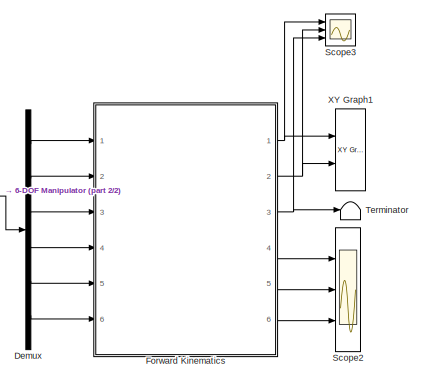
[diagram: root canvas - part 1/2, right side, full height]
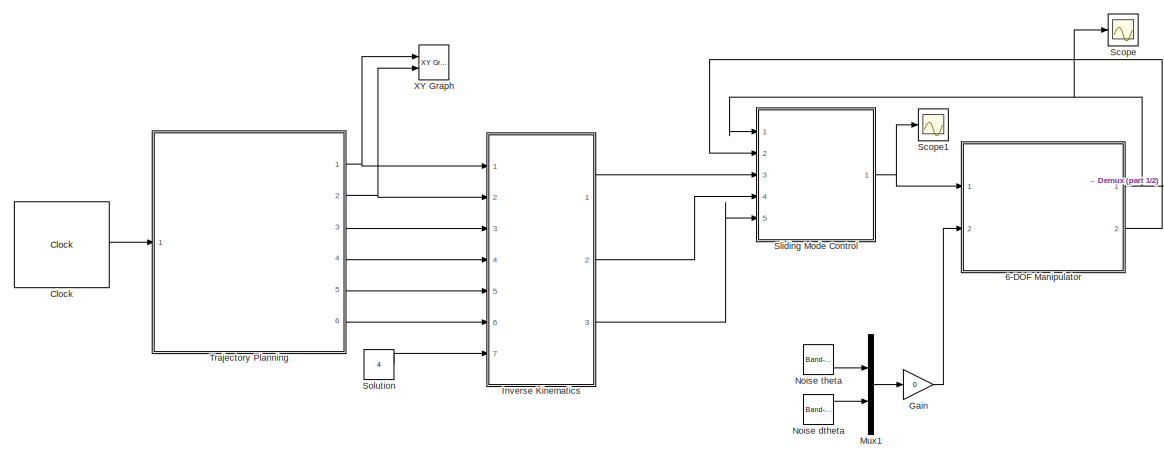
[diagram: root canvas - part 2/2, center side, full height]
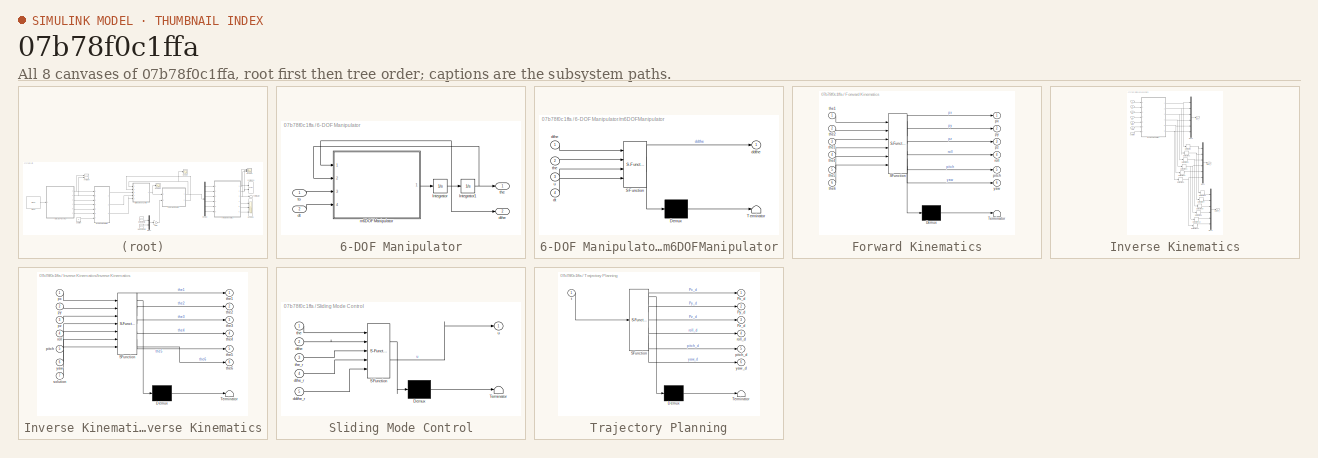
[diagram: thumbnail index - all 8 canvases of the model, root first then tree order]
MODEL slx_07b78f0c1ffa
KIND model
CONFIG AbsTol = auto
CONFIG EnableMultiTasking = off
CONFIG FixedStep = 0.01
CONFIG MaxStep = auto
CONFIG MinStep = auto
CONFIG RelTol = 1e-3
CONFIG SampleTimeConstraint = Unconstrained
CONFIG SolverName = ode14x
CONFIG StartTime = 0.0
CONFIG StopTime = 100
BLOCK [SubSystem] 6-DOF Manipulator
  Ports = [2, 2]
  RequestExecContextInheritance = off
BLOCK [Integrator] 6-DOF Manipulator/Integrator
  InitialCondition = [0.01;0.01;0.01;0.01;0.01;0.01]
  Ports = [1, 1]
BLOCK [Integrator] 6-DOF Manipulator/Integrator1
  InitialCondition = [0.01;0.01;0.01;0.01;0.01;0.01]
  Ports = [1, 1]
BLOCK [Inport] 6-DOF Manipulator/dt
  Port = 2
BLOCK [Outport] 6-DOF Manipulator/dthe
  Port = 2
BLOCK [SubSystem] 6-DOF Manipulator/m6DOFManipulator
  ErrorFcn = Stateflow.Translate.translate
  PermitHierarchicalResolution = ExplicitOnly
  Ports = [4, 1]
  RequestExecContextInheritance = off
  SFBlockType = MATLAB Function
  TreatAsAtomicUnit = on
BLOCK [Demux] 6-DOF Manipulator/m6DOFManipulator/ Demux 
  Outputs = 1
  Ports = [1, 1]
BLOCK [S-Function] 6-DOF Manipulator/m6DOFManipulator/ SFunction 
  EnableBusSupport = on
  FunctionName = sf_sfun
  PortCounts = [4 2]
  Ports = [4, 2]
  SFcnIsStateOwnerBlock = off
  SFunctionDeploymentMode = off
  Tag = Stateflow S-Function 2
BLOCK [Terminator] 6-DOF Manipulator/m6DOFManipulator/ Terminator 
BLOCK [Outport] 6-DOF Manipulator/m6DOFManipulator/ddthe
BLOCK [Inport] 6-DOF Manipulator/m6DOFManipulator/dt
  Port = 4
BLOCK [Inport] 6-DOF Manipulator/m6DOFManipulator/dthe
BLOCK [Inport] 6-DOF Manipulator/m6DOFManipulator/the
  Port = 2
BLOCK [Inport] 6-DOF Manipulator/m6DOFManipulator/u
  Port = 3
BLOCK [Outport] 6-DOF Manipulator/the
BLOCK [Inport] 6-DOF Manipulator/to
BLOCK [Clock] Clock
  DisplayTime = on
BLOCK [Demux] Demux
  Outputs = 6
  Ports = [1, 6]
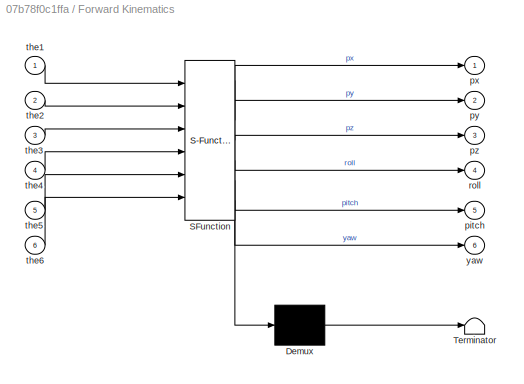
BLOCK [SubSystem] Forward Kinematics
  ErrorFcn = Stateflow.Translate.translate
  PermitHierarchicalResolution = ExplicitOnly
  Ports = [6, 6]
  RequestExecContextInheritance = off
  SFBlockType = MATLAB Function
  TreatAsAtomicUnit = on
BLOCK [Demux] Forward Kinematics/ Demux 
  Outputs = 1
  Ports = [1, 1]
BLOCK [S-Function] Forward Kinematics/ SFunction 
  EnableBusSupport = on
  FunctionName = sf_sfun
  PortCounts = [6 7]
  Ports = [6, 7]
  SFcnIsStateOwnerBlock = off
  SFunctionDeploymentMode = off
  Tag = Stateflow S-Function 5
BLOCK [Terminator] Forward Kinematics/ Terminator 
BLOCK [Outport] Forward Kinematics/pitch
  Port = 5
BLOCK [Outport] Forward Kinematics/px
BLOCK [Outport] Forward Kinematics/py
  Port = 2
BLOCK [Outport] Forward Kinematics/pz
  Port = 3
BLOCK [Outport] Forward Kinematics/roll
  Port = 4
BLOCK [Inport] Forward Kinematics/the1
BLOCK [Inport] Forward Kinematics/the2
  Port = 2
BLOCK [Inport] Forward Kinematics/the3
  Port = 3
BLOCK [Inport] Forward Kinematics/the4
  Port = 4
BLOCK [Inport] Forward Kinematics/the5
  Port = 5
BLOCK [Inport] Forward Kinematics/the6
  Port = 6
BLOCK [Outport] Forward Kinematics/yaw
  Port = 6
BLOCK [Gain] Gain
  Gain = 0
BLOCK [SubSystem] Inverse Kinematics
  Ports = [7, 3]
  RequestExecContextInheritance = off
BLOCK [Derivative] Inverse Kinematics/Derivative
BLOCK [Derivative] Inverse Kinematics/Derivative1
BLOCK [Derivative] Inverse Kinematics/Derivative10
BLOCK [Derivative] Inverse Kinematics/Derivative11
BLOCK [Derivative] Inverse Kinematics/Derivative2
BLOCK [Derivative] Inverse Kinematics/Derivative3
BLOCK [Derivative] Inverse Kinematics/Derivative4
BLOCK [Derivative] Inverse Kinematics/Derivative5
BLOCK [Derivative] Inverse Kinematics/Derivative6
BLOCK [Derivative] Inverse Kinematics/Derivative7
BLOCK [Derivative] Inverse Kinematics/Derivative8
BLOCK [Derivative] Inverse Kinematics/Derivative9
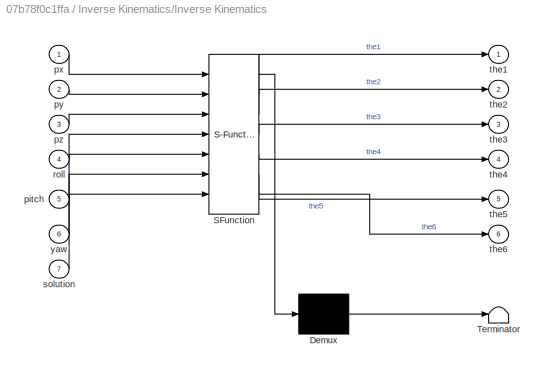
BLOCK [SubSystem] Inverse Kinematics/Inverse Kinematics
  ErrorFcn = Stateflow.Translate.translate
  PermitHierarchicalResolution = ExplicitOnly
  Ports = [7, 6]
  RequestExecContextInheritance = off
  SFBlockType = MATLAB Function
  TreatAsAtomicUnit = on
BLOCK [Demux] Inverse Kinematics/Inverse Kinematics/ Demux 
  Outputs = 1
  Ports = [1, 1]
BLOCK [S-Function] Inverse Kinematics/Inverse Kinematics/ SFunction 
  EnableBusSupport = on
  FunctionName = sf_sfun
  PortCounts = [7 7]
  Ports = [7, 7]
  SFcnIsStateOwnerBlock = off
  SFunctionDeploymentMode = off
  Tag = Stateflow S-Function 3
BLOCK [Terminator] Inverse Kinematics/Inverse Kinematics/ Terminator 
BLOCK [Inport] Inverse Kinematics/Inverse Kinematics/pitch
  Port = 5
BLOCK [Inport] Inverse Kinematics/Inverse Kinematics/px
BLOCK [Inport] Inverse Kinematics/Inverse Kinematics/py
  Port = 2
BLOCK [Inport] Inverse Kinematics/Inverse Kinematics/pz
  Port = 3
BLOCK [Inport] Inverse Kinematics/Inverse Kinematics/roll
  Port = 4
BLOCK [Inport] Inverse Kinematics/Inverse Kinematics/solution
  Port = 7
BLOCK [Outport] Inverse Kinematics/Inverse Kinematics/the1
BLOCK [Outport] Inverse Kinematics/Inverse Kinematics/the2
  Port = 2
BLOCK [Outport] Inverse Kinematics/Inverse Kinematics/the3
  Port = 3
BLOCK [Outport] Inverse Kinematics/Inverse Kinematics/the4
  Port = 4
BLOCK [Outport] Inverse Kinematics/Inverse Kinematics/the5
  Port = 5
BLOCK [Outport] Inverse Kinematics/Inverse Kinematics/the6
  Port = 6
BLOCK [Inport] Inverse Kinematics/Inverse Kinematics/yaw
  Port = 6
BLOCK [Mux] Inverse Kinematics/Mux1
  DisplayOption = bar
  Inputs = 6
  Ports = [6, 1]
BLOCK [Mux] Inverse Kinematics/Mux2
  DisplayOption = bar
  Inputs = 6
  Ports = [6, 1]
BLOCK [Mux] Inverse Kinematics/Mux3
  DisplayOption = bar
  Inputs = 6
  Ports = [6, 1]
BLOCK [Outport] Inverse Kinematics/ddthe_r
  Port = 3
  VectorParamsAs1DForOutWhenUnconnected = off
BLOCK [Outport] Inverse Kinematics/dthe_r
  Port = 2
  VectorParamsAs1DForOutWhenUnconnected = off
BLOCK [Inport] Inverse Kinematics/pitch
  Port = 5
BLOCK [Inport] Inverse Kinematics/px
BLOCK [Inport] Inverse Kinematics/py
  Port = 2
BLOCK [Inport] Inverse Kinematics/pz
  Port = 3
BLOCK [Inport] Inverse Kinematics/roll
  Port = 4
BLOCK [Inport] Inverse Kinematics/solution
  Port = 7
BLOCK [Outport] Inverse Kinematics/the_r
  VectorParamsAs1DForOutWhenUnconnected = off
BLOCK [Inport] Inverse Kinematics/yaw
  Port = 6
BLOCK [Mux] Mux1
  DisplayOption = bar
  Inputs = 2
  Ports = [2, 1]
BLOCK [Reference] Noise dtheta  REF=simulink/Sources/Band-Limited
White Noise
  Ports = [0, 1]
  SourceBlock = simulink/Sources/Band-Limited\nWhite Noise
  SourceProductBaseCode = SL
  SourceType = Band-Limited White Noise.
BLOCK [Reference] Noise theta  REF=simulink/Sources/Band-Limited
White Noise
  Ports = [0, 1]
  SourceBlock = simulink/Sources/Band-Limited\nWhite Noise
  SourceProductBaseCode = SL
  SourceType = Band-Limited White Noise.
BLOCK [Scope] Scope
  Floating = off
  NumInputPorts = 1
  Ports = [1]
  ScopeSpecificationString = Simulink.scopes.TimeScopeBlockCfg('CurrentConfiguration', extmgr.ConfigurationSet(extmgr.Configuration('Core','General UI',true),extmgr.Configuration('Core','Source UI',true),extmgr.Configuration('Sources','WiredSimulink',true),extmgr.Configuration('Visuals','Time Domain',true,'SerializedDisplays',{struct('MinYLimReal','-3.40232','MaxYLimReal','1.04364','YLabelReal','','MinYLimMag','0.00000','MaxY...<+1513ch>
BLOCK [Scope] Scope1
  Floating = off
  NumInputPorts = 1
  Ports = [1]
  ScopeSpecificationString = Simulink.scopes.TimeScopeBlockCfg('CurrentConfiguration', extmgr.ConfigurationSet(extmgr.Configuration('Core','General UI',true),extmgr.Configuration('Core','Source UI',true),extmgr.Configuration('Sources','WiredSimulink',true,'DataLoggingVariableName','ScopeData1'),extmgr.Configuration('Visuals','Time Domain',true,'SerializedDisplays',{struct('MinYLimReal','-677.88776','MaxYLimReal','2380.56865',...<+1551ch>
BLOCK [Scope] Scope2
  Floating = off
  NumInputPorts = 3
  Ports = [3]
  ScopeSpecificationString = Simulink.scopes.TimeScopeBlockCfg('CurrentConfiguration', extmgr.ConfigurationSet(extmgr.Configuration('Core','General UI',true),extmgr.Configuration('Core','Source UI',true),extmgr.Configuration('Sources','WiredSimulink',true,'DataLoggingVariableName','ScopeData1'),extmgr.Configuration('Visuals','Time Domain',true,'SerializedDisplays',{struct('MinYLimReal','-3.42027','MaxYLimReal','2.53934','YLab...<+2777ch>
BLOCK [Scope] Scope3
  Floating = off
  NumInputPorts = 3
  Ports = [3]
  ScopeSpecificationString = Simulink.scopes.TimeScopeBlockCfg('CurrentConfiguration', extmgr.ConfigurationSet(extmgr.Configuration('Core','General UI',true),extmgr.Configuration('Core','Source UI',true),extmgr.Configuration('Sources','WiredSimulink',true,'DataLoggingVariableName','SMC','DataLogging',true,'DataLoggingSaveFormat','Structure'),extmgr.Configuration('Visuals','Time Domain',true,'SerializedDisplays',{struct('MinYL...<+1564ch>
BLOCK [SubSystem] Sliding Mode Control
  ErrorFcn = Stateflow.Translate.translate
  PermitHierarchicalResolution = ExplicitOnly
  Ports = [5, 1]
  RequestExecContextInheritance = off
  SFBlockType = MATLAB Function
  TreatAsAtomicUnit = on
BLOCK [Demux] Sliding Mode Control/ Demux 
  Outputs = 1
  Ports = [1, 1]
BLOCK [S-Function] Sliding Mode Control/ SFunction 
  EnableBusSupport = on
  FunctionName = sf_sfun
  PortCounts = [5 2]
  Ports = [5, 2]
  SFcnIsStateOwnerBlock = off
  SFunctionDeploymentMode = off
  Tag = Stateflow S-Function 1
BLOCK [Terminator] Sliding Mode Control/ Terminator 
BLOCK [Inport] Sliding Mode Control/ddthe_r
  Port = 5
BLOCK [Inport] Sliding Mode Control/dthe
  Port = 2
BLOCK [Inport] Sliding Mode Control/dthe_r
  Port = 4
BLOCK [Inport] Sliding Mode Control/the
BLOCK [Inport] Sliding Mode Control/the_r
  Port = 3
BLOCK [Outport] Sliding Mode Control/u
BLOCK [Constant] Solution
  Value = 4
BLOCK [Terminator] Terminator
BLOCK [SubSystem] Trajectory Planning
  ErrorFcn = Stateflow.Translate.translate
  PermitHierarchicalResolution = ExplicitOnly
  Ports = [1, 6]
  RequestExecContextInheritance = off
  SFBlockType = MATLAB Function
  TreatAsAtomicUnit = on
BLOCK [Demux] Trajectory Planning/ Demux 
  Outputs = 1
  Ports = [1, 1]
BLOCK [S-Function] Trajectory Planning/ SFunction 
  EnableBusSupport = on
  FunctionName = sf_sfun
  PortCounts = [1 7]
  Ports = [1, 7]
  SFcnIsStateOwnerBlock = off
  SFunctionDeploymentMode = off
  Tag = Stateflow S-Function 4
BLOCK [Terminator] Trajectory Planning/ Terminator 
BLOCK [Outport] Trajectory Planning/Px_d
BLOCK [Outport] Trajectory Planning/Py_d
  Port = 2
BLOCK [Outport] Trajectory Planning/Pz_d
  Port = 3
BLOCK [Outport] Trajectory Planning/pitch_d
  Port = 5
BLOCK [Outport] Trajectory Planning/roll_d
  Port = 4
BLOCK [Inport] Trajectory Planning/t
BLOCK [Outport] Trajectory Planning/yaw_d
  Port = 6
BLOCK [Reference] XY Graph  REF=simulink/Sinks/XY Graph
  Commented = on
  Ports = [2]
  SourceBlock = simulink/Sinks/XY Graph
  SourceProductBaseCode = SL
  SourceType = XY scope.
BLOCK [Reference] XY Graph1  REF=simulink/Sinks/XY Graph
  Commented = on
  Ports = [2]
  SourceBlock = simulink/Sinks/XY Graph
  SourceProductBaseCode = SL
  SourceType = XY scope.
NET 6-DOF Manipulator/Integrator1:1 -> 6-DOF Manipulator/m6DOFManipulator:2, 6-DOF Manipulator/the:1
NET 6-DOF Manipulator/Integrator:1 -> 6-DOF Manipulator/Integrator1:1, 6-DOF Manipulator/dthe:1, 6-DOF Manipulator/m6DOFManipulator:1
LINE 6-DOF Manipulator/dt:1 -> 6-DOF Manipulator/m6DOFManipulator:4
LINE 6-DOF Manipulator/m6DOFManipulator:1 -> 6-DOF Manipulator/Integrator:1
LINE 6-DOF Manipulator/to:1 -> 6-DOF Manipulator/m6DOFManipulator:3
NET 6-DOF Manipulator:1 -> Demux:1, Scope:1, Sliding Mode Control:1
LINE 6-DOF Manipulator:2 -> Sliding Mode Control:2
LINE Clock:1 -> Trajectory Planning:1
LINE Demux:1 -> Forward Kinematics:1
LINE Demux:2 -> Forward Kinematics:2
LINE Demux:3 -> Forward Kinematics:3
LINE Demux:4 -> Forward Kinematics:4
LINE Demux:5 -> Forward Kinematics:5
LINE Demux:6 -> Forward Kinematics:6
NET Forward Kinematics:1 -> Scope3:1, XY Graph1:1
NET Forward Kinematics:2 -> Scope3:2, XY Graph1:2
NET Forward Kinematics:3 -> Scope3:3, Terminator:1
LINE Forward Kinematics:4 -> Scope2:1
LINE Forward Kinematics:5 -> Scope2:2
LINE Forward Kinematics:6 -> Scope2:3
LINE Gain:1 -> 6-DOF Manipulator:2
LINE Inverse Kinematics/Derivative10:1 -> Inverse Kinematics/Mux2:5
LINE Inverse Kinematics/Derivative11:1 -> Inverse Kinematics/Mux2:6
NET Inverse Kinematics/Derivative1:1 -> Inverse Kinematics/Derivative7:1, Inverse Kinematics/Mux1:2
NET Inverse Kinematics/Derivative2:1 -> Inverse Kinematics/Derivative8:1, Inverse Kinematics/Mux1:3
NET Inverse Kinematics/Derivative3:1 -> Inverse Kinematics/Derivative10:1, Inverse Kinematics/Derivative9:1, Inverse Kinematics/Mux1:4
LINE Inverse Kinematics/Derivative4:1 -> Inverse Kinematics/Mux1:5
NET Inverse Kinematics/Derivative5:1 -> Inverse Kinematics/Derivative11:1, Inverse Kinematics/Mux1:6
LINE Inverse Kinematics/Derivative6:1 -> Inverse Kinematics/Mux2:1
LINE Inverse Kinematics/Derivative7:1 -> Inverse Kinematics/Mux2:2
LINE Inverse Kinematics/Derivative8:1 -> Inverse Kinematics/Mux2:3
LINE Inverse Kinematics/Derivative9:1 -> Inverse Kinematics/Mux2:4
NET Inverse Kinematics/Derivative:1 -> Inverse Kinematics/Derivative6:1, Inverse Kinematics/Mux1:1
NET Inverse Kinematics/Inverse Kinematics:1 -> Inverse Kinematics/Derivative:1, Inverse Kinematics/Mux3:1
NET Inverse Kinematics/Inverse Kinematics:2 -> Inverse Kinematics/Derivative1:1, Inverse Kinematics/Mux3:2
NET Inverse Kinematics/Inverse Kinematics:3 -> Inverse Kinematics/Derivative2:1, Inverse Kinematics/Mux3:3
NET Inverse Kinematics/Inverse Kinematics:4 -> Inverse Kinematics/Derivative3:1, Inverse Kinematics/Mux3:4
NET Inverse Kinematics/Inverse Kinematics:5 -> Inverse Kinematics/Derivative4:1, Inverse Kinematics/Mux3:5
NET Inverse Kinematics/Inverse Kinematics:6 -> Inverse Kinematics/Derivative5:1, Inverse Kinematics/Mux3:6
LINE Inverse Kinematics/Mux1:1 -> Inverse Kinematics/dthe_r:1
LINE Inverse Kinematics/Mux2:1 -> Inverse Kinematics/ddthe_r:1
LINE Inverse Kinematics/Mux3:1 -> Inverse Kinematics/the_r:1
LINE Inverse Kinematics/pitch:1 -> Inverse Kinematics/Inverse Kinematics:5
LINE Inverse Kinematics/px:1 -> Inverse Kinematics/Inverse Kinematics:1
LINE Inverse Kinematics/py:1 -> Inverse Kinematics/Inverse Kinematics:2
LINE Inverse Kinematics/pz:1 -> Inverse Kinematics/Inverse Kinematics:3
LINE Inverse Kinematics/roll:1 -> Inverse Kinematics/Inverse Kinematics:4
LINE Inverse Kinematics/solution:1 -> Inverse Kinematics/Inverse Kinematics:7
LINE Inverse Kinematics/yaw:1 -> Inverse Kinematics/Inverse Kinematics:6
LINE Inverse Kinematics:1 -> Sliding Mode Control:3
LINE Inverse Kinematics:2 -> Sliding Mode Control:4
LINE Inverse Kinematics:3 -> Sliding Mode Control:5
LINE Mux1:1 -> Gain:1
LINE Noise dtheta:1 -> Mux1:2
LINE Noise theta:1 -> Mux1:1
NET Sliding Mode Control:1 -> 6-DOF Manipulator:1, Scope1:1
LINE Solution:1 -> Inverse Kinematics:7
NET Trajectory Planning:1 -> Inverse Kinematics:1, XY Graph:1
NET Trajectory Planning:2 -> Inverse Kinematics:2, XY Graph:2
LINE Trajectory Planning:3 -> Inverse Kinematics:3
LINE Trajectory Planning:4 -> Inverse Kinematics:4
LINE Trajectory Planning:5 -> Inverse Kinematics:5
LINE Trajectory Planning:6 -> Inverse Kinematics:6
note: NET lines group one-source signal fan-out (src -> all destinations, sorted); 1:1 wires keep LINE
CHART Sliding Mode Control states=1 transitions=1
  STATE_LABEL 'eML_blk_kernel()'
  STATE_LABEL 'SCRIPT:\nfunction u = SMC(the,dthe,the_r,dthe_r,ddthe_r)\n%% Declare manipulator dynamics:\nm1=0.1; m2=0.1; m3=0.1; m4=0.1; m5=0.1; m6=0.1;\nI1=0; I2=0; I3=0; I4=0; I5=0; I6=1;\na1=0.75; a2=2.70; a3=0.90; d1=3.35; d4=2.95; d7=0.80;\ng=9.81;\n%%\ne1 = the(1); e2 = the(2); e3 = the(3);\ne4 = the(4); e5 = the(5); e6 = the(6);\nde1 = dthe(1); de2 = dthe(2); de3 = dthe(3);\nde4 = dthe(4); de5 = dthe(5); de6 = dth...<+3608ch>'
CHART 6-DOF Manipulator/m6DOFManipulator states=1 transitions=1
  STATE_LABEL 'eML_blk_kernel()'
  STATE_LABEL 'SCRIPT:\nfunction ddthe  = m6DOFManipulator(dthe,the,u,dt)\n%% Declare:\nm1=0.1; m2=0.1; m3=0.1; m4=0.1; m5=0.1; m6=0.1;\nI1=0; I2=0; I3=0; I4=0; I5=0; I6=1;\na1=0.75; a2=2.70; a3=0.90; d1=3.35; d4=2.95; d7=0.80;\ng=9.81;\n%%\ne1 = the(1) + dt(1); e2 = the(2) + dt(1); e3 = the(3) + dt(1);\ne4 = the(4) + dt(1); e5 = the(5) + dt(1); e6 = the(6) + dt(1);\nde1 = dthe(1) + dt(2); de2 = dthe(2) + dt(2); de3 = dth...<+3608ch>'
CHART Inverse Kinematics/Inverse Kinematics states=1 transitions=1
  STATE_LABEL 'eML_blk_kernel()'
  STATE_LABEL 'SCRIPT:\nfunction [the1,the2,the3,the4,the5,the6] = fcn(px,py,pz,roll,pitch,yaw,solution)\na1=75; a2=270; a3=90; d1=335; d4=295; d7=80;\nemt = zeros(8,6);\nm = 0;\nr11 = cos(yaw)*cos(pitch);\nr21 = sin(yaw)*cos(pitch);\nr31 = -sin(pitch);\nr12 = cos(yaw)*sin(pitch)*sin(roll) - sin(yaw)*cos(roll);\nr22 = sin(yaw)*sin(pitch)*sin(roll) + cos(yaw)*cos(roll);\nr32 = cos(pitch)*sin(roll);\nr13 = cos(yaw)*sin(pitch...<+1849ch>'
CHART Trajectory Planning states=1 transitions=1
  STATE_LABEL 'eML_blk_kernel()'
  STATE_LABEL 'SCRIPT:\nfunction [Px_d,Py_d,Pz_d,roll_d,pitch_d,yaw_d] = TrajectoryPlanning(t)\nf=0.01; %hz\nPx_d = 400;\nPy_d = 0+50*cos(2*pi*f*t);\nPz_d = 650+50*sin(2*pi*f*t);\nroll_d=0.5;\npitch_d=0.5;\nyaw_d=0.5;'
CHART Forward Kinematics states=1 transitions=1
  STATE_LABEL 'eML_blk_kernel()'
  STATE_LABEL 'SCRIPT:\nfunction [px,py,pz,roll,pitch,yaw] = FK_6DOF(the1,the2,the3,the4,the5,the6)\na1=75; a2=270; a3=90; d1=335; d4=295; d7=80;\n\nT_0_EE = ...\n[ cos(the6)*(cos(the5)*sin(the1)*sin(the4) + cos(the2 + the3)*cos(the1)*sin(the5) + cos(the1)*cos(the2)*cos(the4)*cos(the5)*sin(the3) + cos(the1)*cos(the3)*cos(the4)*cos(the5)*sin(the2)) - sin(the6)*(cos(the1)*cos(the2)*sin(the3)*sin(the4) - cos(the4)*sin(t...<+3608ch>'
CHART  states=0 transitions=0
CHART  states=0 transitions=0
CHART  states=0 transitions=0
CHART  states=0 transitions=0
CHART  states=0 transitions=0
